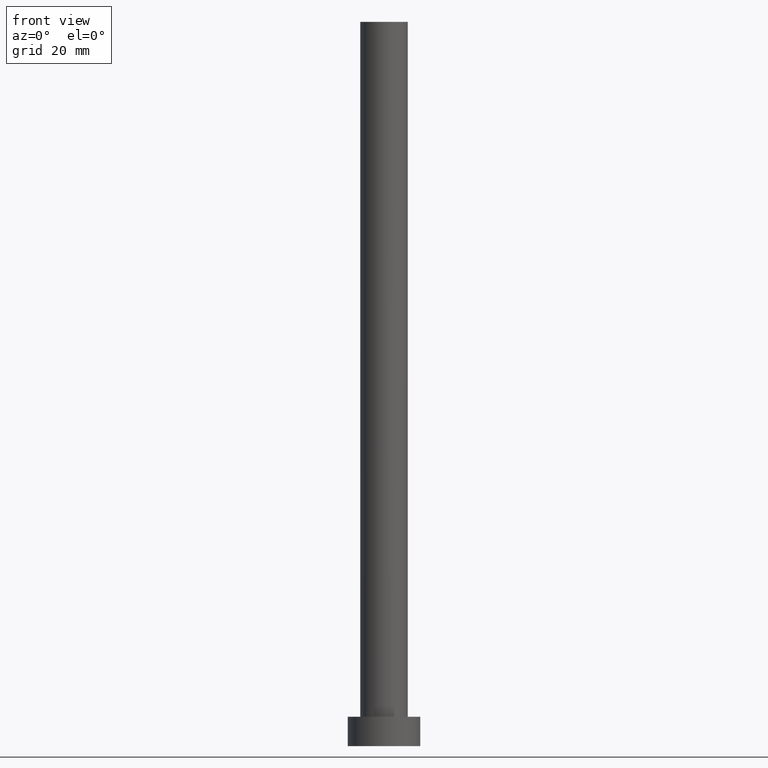
[diagram: clean part render]
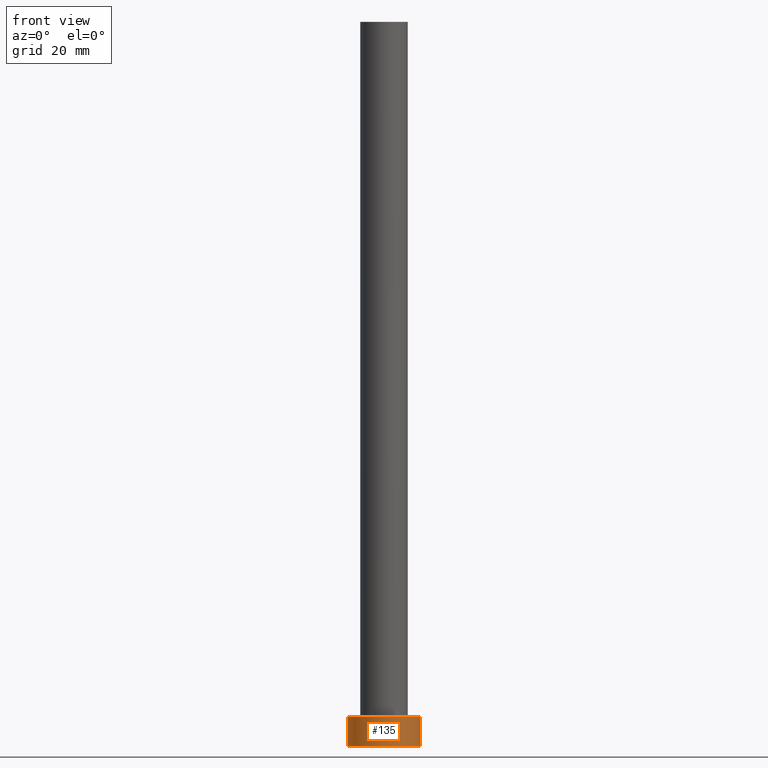
[diagram: same view with one face highlighted and labeled with its STEP entity id]
A machine part, front view. The second image highlights one B-rep face of the part: STEP entity #135.
In plain terms, the highlighted cylindrical surface (edge-blend (fillet) strip) has radius 8 mm, axis along (-0, -0, -1).
Its self-contained STEP definition (entity closure, byte-faithful):
#3 = EDGE_CURVE ( 'NONE', #242, #116, #157, .T. ) ;
#5 = DIRECTION ( 'NONE',  ( -0.000000000000000000, -0.000000000000000000, -1.000000000000000000 ) ) ;
#8 = DIRECTION ( 'NONE',  ( 0.000000000000000000, 0.000000000000000000, 1.000000000000000000 ) ) ;
#11 = CARTESIAN_POINT ( 'NONE',  ( -8.000000000000000000, 0.000000000000000000, 0.000000000000000000 ) ) ;
#23 = CARTESIAN_POINT ( 'NONE',  ( 8.000000000000000000, 9.797174393178823685E-16, 6.500000000000000000 ) ) ;
#32 = AXIS2_PLACEMENT_3D ( 'NONE', #232, #137, #125 ) ;
#33 = CARTESIAN_POINT ( 'NONE',  ( 0.000000000000000000, 0.000000000000000000, 6.500000000000000000 ) ) ;
#42 = AXIS2_PLACEMENT_3D ( 'NONE', #183, #8, #79 ) ;
#44 = CYLINDRICAL_SURFACE ( 'NONE', #32, 8.000000000000000000 ) ;
#48 = EDGE_CURVE ( 'NONE', #242, #172, #197, .T. ) ;
#55 = CARTESIAN_POINT ( 'NONE',  ( -8.000000000000000000, 0.000000000000000000, 6.500000000000000000 ) ) ;
#63 = CARTESIAN_POINT ( 'NONE',  ( 8.000000000000000000, 9.797174393178823685E-16, 6.500000000000000000 ) ) ;
#69 = AXIS2_PLACEMENT_3D ( 'NONE', #33, #111, #190 ) ;
#71 = LINE ( 'NONE', #63, #177 ) ;
#72 = ORIENTED_EDGE ( 'NONE', *, *, #48, .T. ) ;
#75 = VECTOR ( 'NONE', #5, 1000.000000000000000 ) ;
#79 = DIRECTION ( 'NONE',  ( 1.000000000000000000, 0.000000000000000000, 0.000000000000000000 ) ) ;
#90 = DIRECTION ( 'NONE',  ( -0.000000000000000000, -0.000000000000000000, -1.000000000000000000 ) ) ;
#111 = DIRECTION ( 'NONE',  ( 0.000000000000000000, 0.000000000000000000, 1.000000000000000000 ) ) ;
#114 = EDGE_LOOP ( 'NONE', ( #189, #166, #72, #161 ) ) ;
#116 = VERTEX_POINT ( 'NONE', #23 ) ;
#125 = DIRECTION ( 'NONE',  ( -1.000000000000000000, 0.000000000000000000, 0.000000000000000000 ) ) ;
#135 = ADVANCED_FACE ( 'NONE', ( #200 ), #44, .T. ) ;
#137 = DIRECTION ( 'NONE',  ( -0.000000000000000000, -0.000000000000000000, -1.000000000000000000 ) ) ;
#157 = CIRCLE ( 'NONE', #69, 8.000000000000000000 ) ;
#161 = ORIENTED_EDGE ( 'NONE', *, *, #225, .T. ) ;
#166 = ORIENTED_EDGE ( 'NONE', *, *, #3, .F. ) ;
#167 = CIRCLE ( 'NONE', #42, 8.000000000000000000 ) ;
#172 = VERTEX_POINT ( 'NONE', #11 ) ;
#177 = VECTOR ( 'NONE', #90, 1000.000000000000000 ) ;
#181 = CARTESIAN_POINT ( 'NONE',  ( -8.000000000000000000, 0.000000000000000000, 6.500000000000000000 ) ) ;
#183 = CARTESIAN_POINT ( 'NONE',  ( 0.000000000000000000, 0.000000000000000000, 0.000000000000000000 ) ) ;
#187 = EDGE_CURVE ( 'NONE', #116, #252, #71, .T. ) ;
#189 = ORIENTED_EDGE ( 'NONE', *, *, #187, .F. ) ;
#190 = DIRECTION ( 'NONE',  ( 1.000000000000000000, 0.000000000000000000, 0.000000000000000000 ) ) ;
#195 = CARTESIAN_POINT ( 'NONE',  ( 8.000000000000000000, 9.797174393178823685E-16, 0.000000000000000000 ) ) ;
#197 = LINE ( 'NONE', #181, #75 ) ;
#200 = FACE_OUTER_BOUND ( 'NONE', #114, .T. ) ;
#225 = EDGE_CURVE ( 'NONE', #172, #252, #167, .T. ) ;
#232 = CARTESIAN_POINT ( 'NONE',  ( 0.000000000000000000, 0.000000000000000000, 6.500000000000000000 ) ) ;
#242 = VERTEX_POINT ( 'NONE', #55 ) ;
#252 = VERTEX_POINT ( 'NONE', #195 ) ;